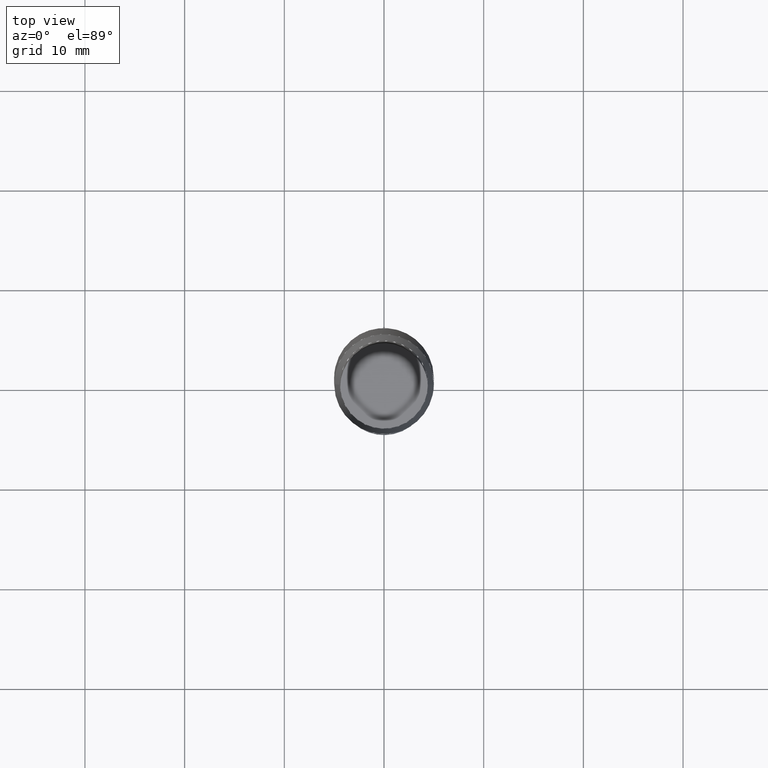
[diagram: clean part render]
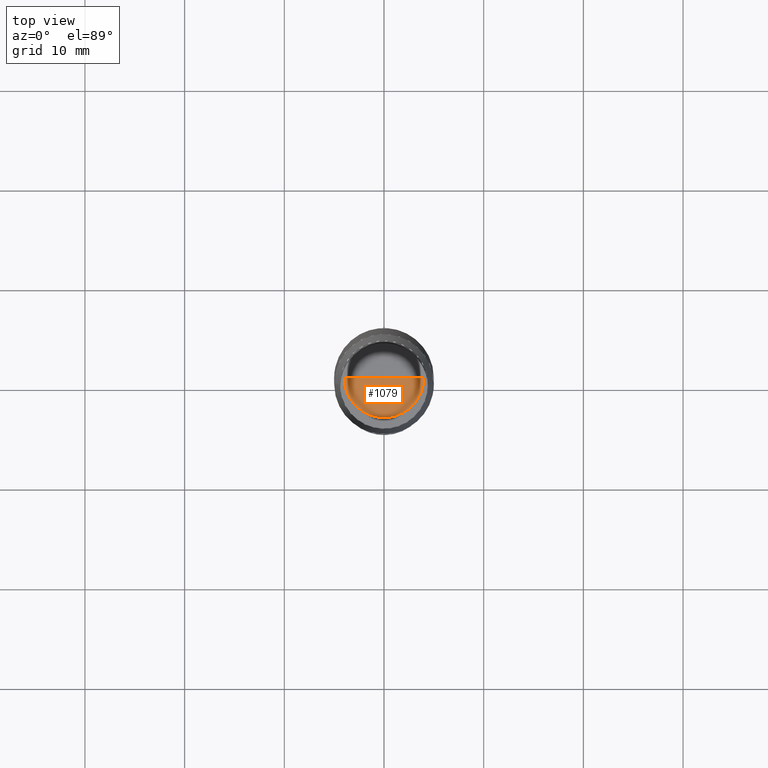
[diagram: same view with one face highlighted and labeled with its STEP entity id]
A machine part, top view. The second image highlights one B-rep face of the part: STEP entity #1079.
In plain terms, the highlighted face is a freeform B-spline surface patch.
Its self-contained STEP definition (entity closure, byte-faithful):
#553=CARTESIAN_POINT('',(4.0,0.0,36.597));
#557=CARTESIAN_POINT('',(-4.0,0.0,36.597));
#558=CARTESIAN_POINT('',(0.0,0.0,36.597));
#580=CARTESIAN_POINT('',(-4.0,-4.0,36.597));
#581=CARTESIAN_POINT('',(0.0,-4.0,36.597));
#582=CARTESIAN_POINT('',(4.0,-4.0,36.597));
#1064=(
BOUNDED_SURFACE()
B_SPLINE_SURFACE(1,2,(
(#557,#580,#581,#582,#553),
(#558,#558,#558,#558,#558)
), .UNSPECIFIED.,.F.,.F.,.F.)
B_SPLINE_SURFACE_WITH_KNOTS((2,2),(3,2,3),(
0.0,1.0),(
0.0,0.5,1.0), .UNSPECIFIED.)
GEOMETRIC_REPRESENTATION_ITEM()
RATIONAL_B_SPLINE_SURFACE(((1.0,0.707106781187,1.0,0.707106781187,1.0),
(1.0,0.707106781187,1.0,0.707106781187,1.0)
))
REPRESENTATION_ITEM('')
SURFACE()
);
#1065=(
BOUNDED_CURVE()
B_SPLINE_CURVE(2,(#553,#582,#581,#580,#557),.UNSPECIFIED.,.F.,.F.)
B_SPLINE_CURVE_WITH_KNOTS((3,2,3),
(0.0,0.5,1.0),.UNSPECIFIED.)
CURVE()
GEOMETRIC_REPRESENTATION_ITEM()
RATIONAL_B_SPLINE_CURVE((1.0,0.707106781187,1.0,0.707106781187,1.0))
REPRESENTATION_ITEM('')
);
#1066=(
BOUNDED_CURVE()
B_SPLINE_CURVE(1,(#557,#558),.UNSPECIFIED.,.F.,.F.)
B_SPLINE_CURVE_WITH_KNOTS((2,2),
(0.0,1.0),.UNSPECIFIED.)
CURVE()
GEOMETRIC_REPRESENTATION_ITEM()
RATIONAL_B_SPLINE_CURVE((1.0,1.0))
REPRESENTATION_ITEM('')
);
#1067=(
BOUNDED_CURVE()
B_SPLINE_CURVE(1,(#558,#553),.UNSPECIFIED.,.F.,.F.)
B_SPLINE_CURVE_WITH_KNOTS((2,2),
(0.0,1.0),.UNSPECIFIED.)
CURVE()
GEOMETRIC_REPRESENTATION_ITEM()
RATIONAL_B_SPLINE_CURVE((1.0,1.0))
REPRESENTATION_ITEM('')
);
#1068=VERTEX_POINT('',#553);
#1069=VERTEX_POINT('',#557);
#1070=VERTEX_POINT('',#558);
#1071=EDGE_CURVE('',#1068,#1069,#1065,.T.);
#1072=EDGE_CURVE('',#1069,#1070,#1066,.T.);
#1073=EDGE_CURVE('',#1070,#1068,#1067,.T.);
#1074=ORIENTED_EDGE('',*,*,#1071,.T.);
#1075=ORIENTED_EDGE('',*,*,#1072,.T.);
#1076=ORIENTED_EDGE('',*,*,#1073,.T.);
#1077=EDGE_LOOP('',(#1074,#1075,#1076));
#1078=FACE_OUTER_BOUND('',#1077,.T.);
#1079=ADVANCED_FACE('',(#1078),#1064,.T.);